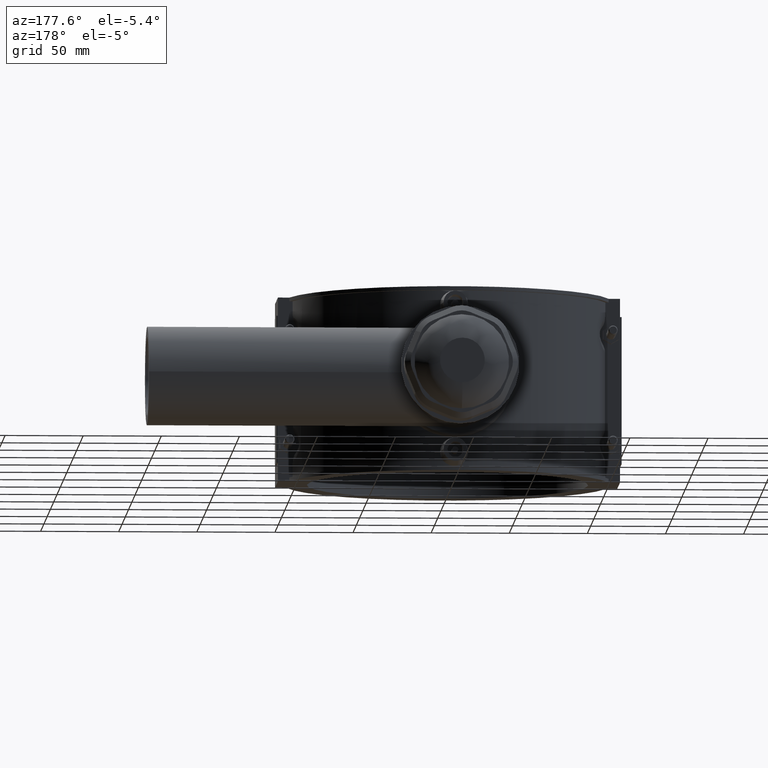
[diagram: clean part render]
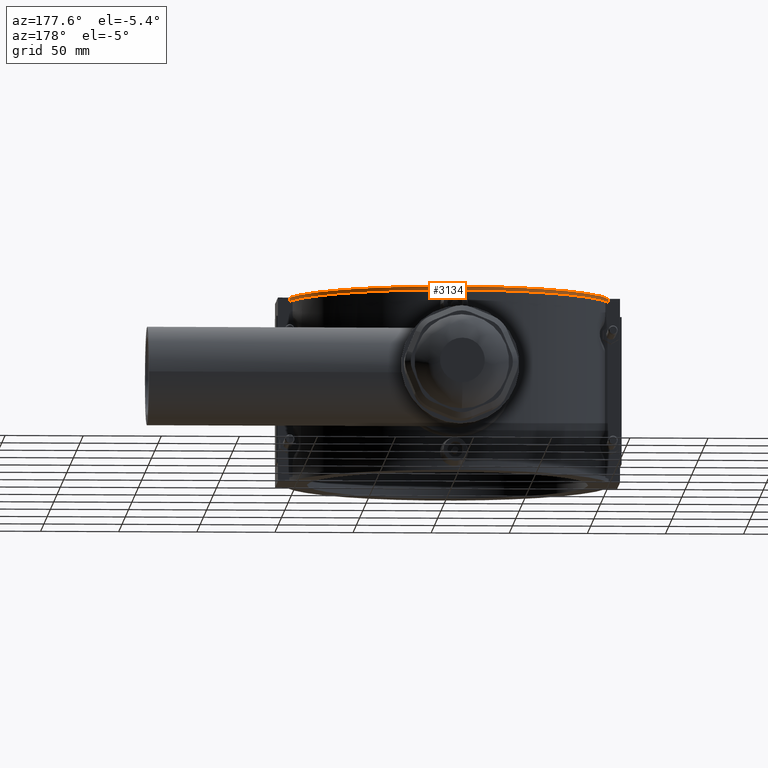
[diagram: same view with one face highlighted and labeled with its STEP entity id]
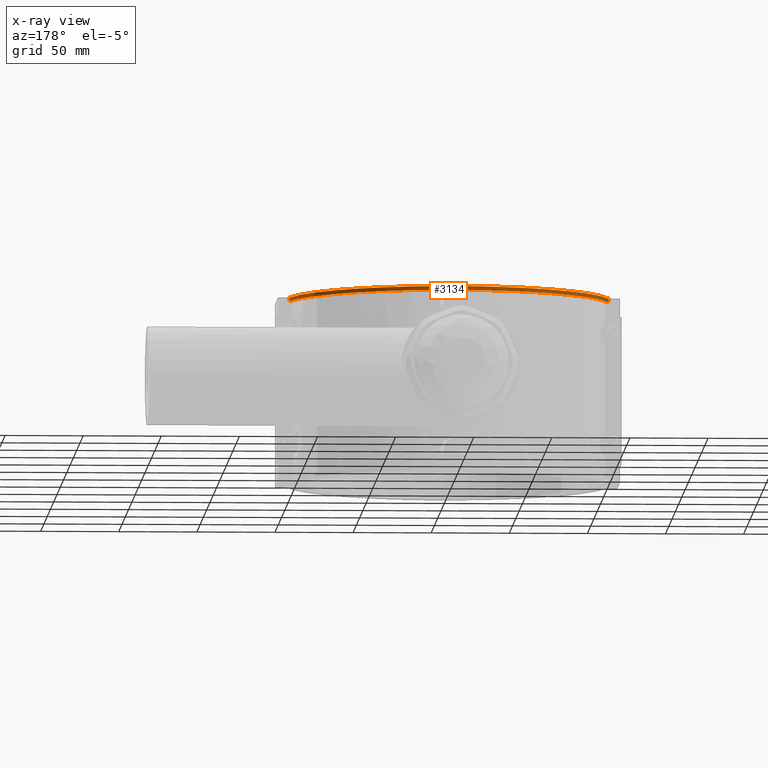
[diagram: x-ray of the same camera — body ghosted, the highlighted face saturated]
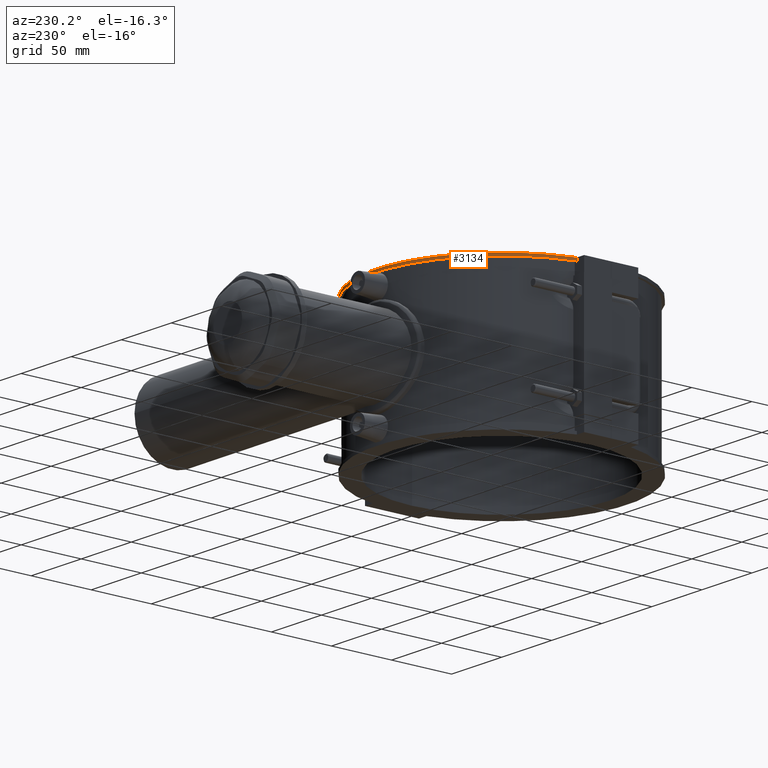
[diagram: same view with one face highlighted and labeled with its STEP entity id]
A machine part, auxiliary view. The second image highlights one B-rep face of the part: STEP entity #3134.
The next image is the same camera in x-ray: the body ghosted, the highlighted face saturated — about 0% of this face is hidden behind the body in this view.
A second angle (auxiliary view) of the same face is appended — the face is thin or edge-on in the first view.
In plain terms, the highlighted cylindrical surface (partial cylindrical patch) has radius 104.652 mm, axis along (0, 0, -1).
Its self-contained STEP definition (entity closure, byte-faithful):
#209=LINE('',#5527,#488);
#255=LINE('',#5991,#534);
#488=VECTOR('',#3946,2.36);
#534=VECTOR('',#4064,2.36);
#759=CIRCLE('',#3193,104.652);
#828=CIRCLE('',#3383,104.652);
#989=FACE_OUTER_BOUND('',#1211,.T.);
#1211=EDGE_LOOP('',(#2715,#2716,#2717,#2718));
#1335=VERTEX_POINT('',#4405);
#1336=VERTEX_POINT('',#4407);
#1518=VERTEX_POINT('',#5526);
#1558=VERTEX_POINT('',#5990);
#1629=EDGE_CURVE('',#1335,#1336,#759,.T.);
#1883=EDGE_CURVE('',#1518,#1335,#209,.T.);
#1952=EDGE_CURVE('',#1336,#1558,#255,.T.);
#1957=EDGE_CURVE('',#1558,#1518,#828,.T.);
#2715=ORIENTED_EDGE('',*,*,#1629,.F.);
#2716=ORIENTED_EDGE('',*,*,#1883,.F.);
#2717=ORIENTED_EDGE('',*,*,#1957,.F.);
#2718=ORIENTED_EDGE('',*,*,#1952,.F.);
#2989=CYLINDRICAL_SURFACE('',#3384,104.652);
#3134=ADVANCED_FACE('',(#989),#2989,.T.);
#3193=AXIS2_PLACEMENT_3D('',#4408,#3480,#3481);
#3383=AXIS2_PLACEMENT_3D('',#6000,#4076,#4077);
#3384=AXIS2_PLACEMENT_3D('',#6001,#4078,#4079);
#3480=DIRECTION('center_axis',(0.,0.,1.));
#3481=DIRECTION('ref_axis',(0.976614427290077,0.21499828001376,0.));
#3946=DIRECTION('',(0.,0.,1.));
#4064=DIRECTION('',(0.,0.,-1.));
#4076=DIRECTION('center_axis',(0.,0.,-1.));
#4077=DIRECTION('ref_axis',(0.976614427290077,0.21499828001376,0.));
#4078=DIRECTION('center_axis',(0.,0.,-1.));
#4079=DIRECTION('ref_axis',(0.976614427290077,0.21499828001376,0.));
#4405=CARTESIAN_POINT('',(102.204653044761,22.5,59.));
#4407=CARTESIAN_POINT('',(-102.204653044761,22.5,59.));
#4408=CARTESIAN_POINT('Origin',(0.,0.,59.));
#5526=CARTESIAN_POINT('',(102.204653044761,22.5,56.64));
#5527=CARTESIAN_POINT('',(102.204653044761,22.5,59.));
#5990=CARTESIAN_POINT('',(-102.204653044761,22.5,56.64));
#5991=CARTESIAN_POINT('',(-102.204653044761,22.5,59.));
#6000=CARTESIAN_POINT('Origin',(0.,0.,56.64));
#6001=CARTESIAN_POINT('Origin',(0.,0.,59.));